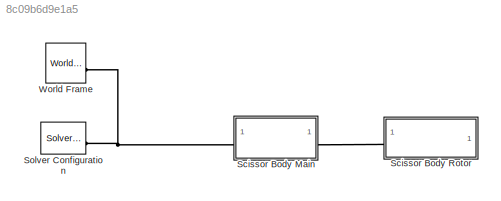
MODEL slx_8c09b6d9e1a5
KIND model
CONFIG AbsTol = auto
CONFIG EnableMultiTasking = off
CONFIG FixedStep = auto
CONFIG MaxStep = auto
CONFIG MinStep = auto
CONFIG RelTol = 1e-3
CONFIG SampleTimeConstraint = Unconstrained
CONFIG SolverName = daessc
CONFIG StartTime = 0.0
CONFIG StopTime = 10.0
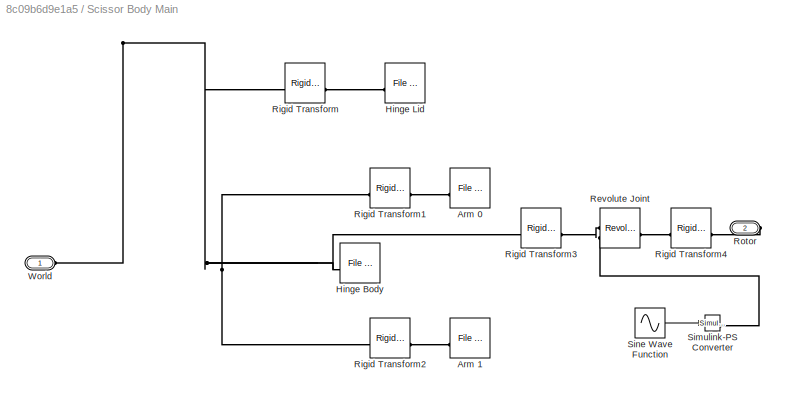
BLOCK [SubSystem] Scissor Body Main
BLOCK [Reference] Scissor Body Main/Arm 0  REF=sm_lib/Body Elements/File Solid
  SourceBlock = sm_lib/Body Elements/File Solid
  SourceType = File Solid
BLOCK [Reference] Scissor Body Main/Arm 1  REF=sm_lib/Body Elements/File Solid
  SourceBlock = sm_lib/Body Elements/File Solid
  SourceType = File Solid
BLOCK [Reference] Scissor Body Main/Hinge Body  REF=sm_lib/Body Elements/File Solid
  SourceBlock = sm_lib/Body Elements/File Solid
  SourceType = File Solid
BLOCK [Reference] Scissor Body Main/Hinge Lid  REF=sm_lib/Body Elements/File Solid
  SourceBlock = sm_lib/Body Elements/File Solid
  SourceType = File Solid
BLOCK [Reference] Scissor Body Main/Revolute Joint  REF=sm_lib/Joints/Revolute Joint
  SourceBlock = sm_lib/Joints/Revolute Joint
  SourceType = Revolute Joint
BLOCK [Reference] Scissor Body Main/Rigid Transform  REF=sm_lib/Frames and
Transforms/Rigid
Transform
  SourceBlock = sm_lib/Frames and\nTransforms/Rigid\nTransform
  SourceType = Rigid\nTransform
BLOCK [Reference] Scissor Body Main/Rigid Transform1  REF=sm_lib/Frames and
Transforms/Rigid
Transform
  SourceBlock = sm_lib/Frames and\nTransforms/Rigid\nTransform
  SourceType = Rigid\nTransform
BLOCK [Reference] Scissor Body Main/Rigid Transform2  REF=sm_lib/Frames and
Transforms/Rigid
Transform
  SourceBlock = sm_lib/Frames and\nTransforms/Rigid\nTransform
  SourceType = Rigid\nTransform
BLOCK [Reference] Scissor Body Main/Rigid Transform3  REF=sm_lib/Frames and
Transforms/Rigid
Transform
  SourceBlock = sm_lib/Frames and\nTransforms/Rigid\nTransform
  SourceType = Rigid\nTransform
BLOCK [Reference] Scissor Body Main/Rigid Transform4  REF=sm_lib/Frames and
Transforms/Rigid
Transform
  SourceBlock = sm_lib/Frames and\nTransforms/Rigid\nTransform
  SourceType = Rigid\nTransform
BLOCK [PMIOPort] Scissor Body Main/Rotor
  Port = 2
  Side = Right
BLOCK [Reference] Scissor Body Main/Simulink-PS Converter  REF=nesl_utility/Simulink-PS
Converter
  SourceBlock = nesl_utility/Simulink-PS\nConverter
  SourceType = Simulink-PS\nConverter
BLOCK [Sin] Scissor Body Main/Sine Wave Function
  Amplitude = 10
  Bias = 20
  Frequency = 0.5
  SampleTime = 0
  TimeSource = Use external signal
BLOCK [PMIOPort] Scissor Body Main/World
  Side = Left
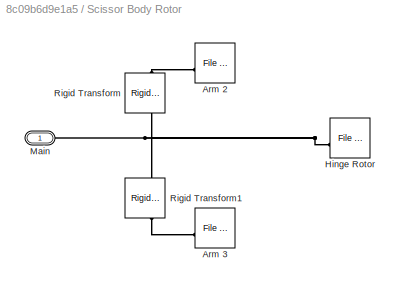
BLOCK [SubSystem] Scissor Body Rotor
BLOCK [Reference] Scissor Body Rotor/Arm 2  REF=sm_lib/Body Elements/File Solid
  SourceBlock = sm_lib/Body Elements/File Solid
  SourceType = File Solid
BLOCK [Reference] Scissor Body Rotor/Arm 3  REF=sm_lib/Body Elements/File Solid
  SourceBlock = sm_lib/Body Elements/File Solid
  SourceType = File Solid
BLOCK [Reference] Scissor Body Rotor/Hinge Rotor  REF=sm_lib/Body Elements/File Solid
  SourceBlock = sm_lib/Body Elements/File Solid
  SourceType = File Solid
BLOCK [PMIOPort] Scissor Body Rotor/Main
  Side = Left
BLOCK [Reference] Scissor Body Rotor/Rigid Transform  REF=sm_lib/Frames and
Transforms/Rigid
Transform
  NameLocation = right
  SourceBlock = sm_lib/Frames and\nTransforms/Rigid\nTransform
  SourceType = Rigid\nTransform
BLOCK [Reference] Scissor Body Rotor/Rigid Transform1  REF=sm_lib/Frames and
Transforms/Rigid
Transform
  NameLocation = left
  SourceBlock = sm_lib/Frames and\nTransforms/Rigid\nTransform
  SourceType = Rigid\nTransform
BLOCK [Reference] Solver Configuration  REF=nesl_utility/Solver
Configuration
  SourceBlock = nesl_utility/Solver\nConfiguration
  SourceType = Solver\nConfiguration
BLOCK [Reference] World Frame  REF=sm_lib/Frames and
Transforms/World Frame
  SourceBlock = sm_lib/Frames and\nTransforms/World Frame
  SourceType = World Frame
LINE Scissor Body Main/Sine Wave Function:1 -> Scissor Body Main/Simulink-PS Converter:1
PLINE Scissor Body Main/Arm 0:RConn1 -- Scissor Body Main/Rigid Transform1:RConn1
PLINE Scissor Body Main/Arm 1:RConn1 -- Scissor Body Main/Rigid Transform2:RConn1
PNET net1: Scissor Body Main/Hinge Body:RConn1 -- Scissor Body Main/Rigid Transform1:LConn1 -- Scissor Body Main/Rigid Transform2:LConn1 -- Scissor Body Main/Rigid Transform3:LConn1 -- Scissor Body Main/Rigid Transform:LConn1 -- Scissor Body Main/World:RConn1
PLINE Scissor Body Main/Hinge Lid:RConn1 -- Scissor Body Main/Rigid Transform:RConn1
PLINE Scissor Body Main/Revolute Joint:LConn1 -- Scissor Body Main/Rigid Transform3:RConn1
PLINE Scissor Body Main/Revolute Joint:LConn2 -- Scissor Body Main/Simulink-PS Converter:RConn1
PLINE Scissor Body Main/Revolute Joint:RConn1 -- Scissor Body Main/Rigid Transform4:RConn1
PLINE Scissor Body Main/Rigid Transform4:LConn1 -- Scissor Body Main/Rotor:RConn1
PNET net2: Scissor Body Main:LConn1 -- Solver Configuration:RConn1 -- World Frame:RConn1
PLINE Scissor Body Main:RConn1 -- Scissor Body Rotor:LConn1
PLINE Scissor Body Rotor/Arm 2:RConn1 -- Scissor Body Rotor/Rigid Transform:RConn1
PLINE Scissor Body Rotor/Arm 3:RConn1 -- Scissor Body Rotor/Rigid Transform1:RConn1
PNET net3: Scissor Body Rotor/Hinge Rotor:RConn1 -- Scissor Body Rotor/Main:RConn1 -- Scissor Body Rotor/Rigid Transform1:LConn1 -- Scissor Body Rotor/Rigid Transform:LConn1
note: PNET lines group multi-terminal physical nets as a canonical sorted terminal list (undirected conserving connections); 2-terminal nets keep the pairwise PLINE form
